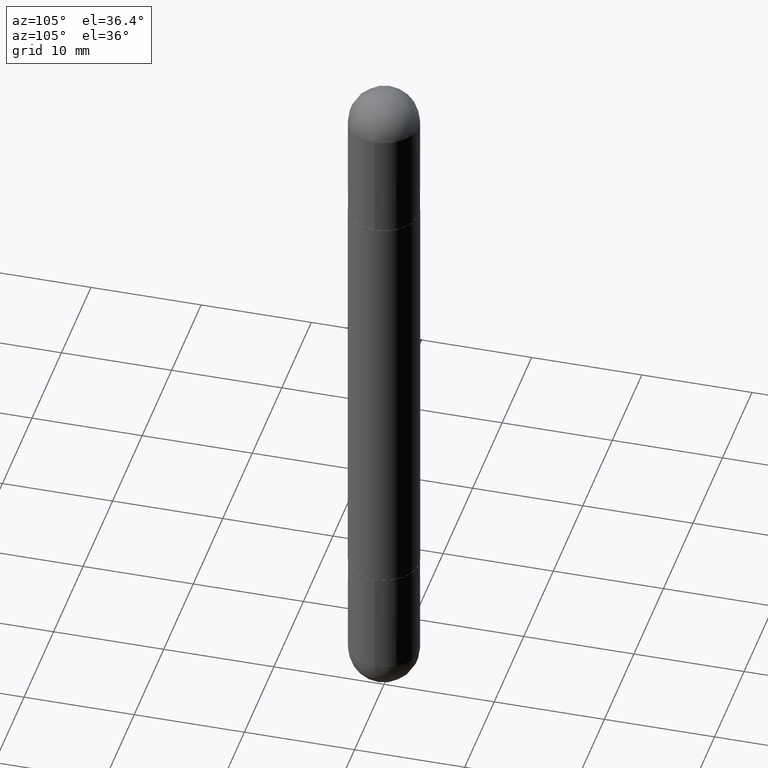
[diagram: clean part render]
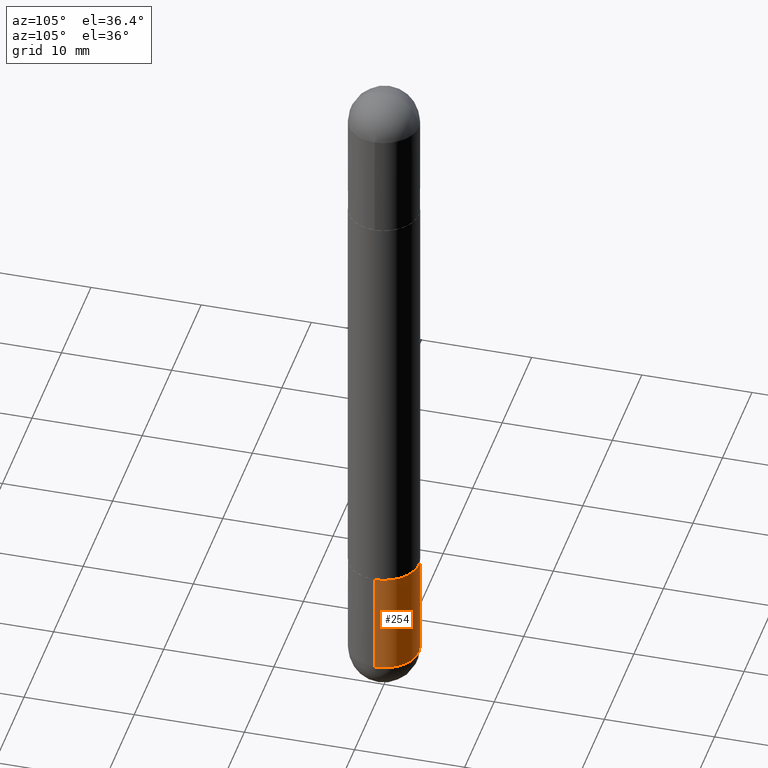
[diagram: same view with one face highlighted and labeled with its STEP entity id]
A machine part, auxiliary view. The second image highlights one B-rep face of the part: STEP entity #254.
In plain terms, the highlighted cylindrical surface (edge-blend (fillet) strip) has radius 3.175 mm, axis along (-0, 0, 1).
Its self-contained STEP definition (entity closure, byte-faithful):
#12 = VECTOR ( 'NONE', #752, 39.37007874015748143 ) ;
#16 = DIRECTION ( 'NONE',  ( 1.000000000000000000, -6.982962677686266711E-15, 4.876176775795935793E-29 ) ) ;
#40 = DIRECTION ( 'NONE',  ( -2.445468806185136877E-29, 3.491481338843145188E-15, 1.000000000000000000 ) ) ;
#93 = DIRECTION ( 'NONE',  ( -2.445468806185136597E-29, 3.491481338843145583E-15, 1.000000000000000000 ) ) ;
#109 = VECTOR ( 'NONE', #40, 39.37007874015748143 ) ;
#110 = CARTESIAN_POINT ( 'NONE',  ( 4.890937612370273194E-29, -6.982962677686291165E-15, -2.000000000000000000 ) ) ;
#113 = CIRCLE ( 'NONE', #540, 0.1250000000000000000 ) ;
#115 = LINE ( 'NONE', #159, #109 ) ;
#124 = LINE ( 'NONE', #493, #12 ) ;
#129 = DIRECTION ( 'NONE',  ( -2.445468806185136597E-29, 3.491481338843145583E-15, 1.000000000000000000 ) ) ;
#159 = CARTESIAN_POINT ( 'NONE',  ( 0.1250000000000000000, -8.728703347107833388E-16, 6.095220969744919741E-30 ) ) ;
#204 = CYLINDRICAL_SURFACE ( 'NONE', #776, 0.1250000000000000000 ) ;
#254 = ADVANCED_FACE ( 'NONE', ( #328 ), #204, .T. ) ;
#279 = CARTESIAN_POINT ( 'NONE',  ( -0.1250000000000000000, -6.749437009019255804E-15, -2.000000000000000000 ) ) ;
#282 = EDGE_CURVE ( 'NONE', #495, #341, #113, .T. ) ;
#313 = EDGE_CURVE ( 'NONE', #341, #454, #528, .T. ) ;
#317 = VERTEX_POINT ( 'NONE', #279 ) ;
#328 = FACE_OUTER_BOUND ( 'NONE', #373, .T. ) ;
#341 = VERTEX_POINT ( 'NONE', #584 ) ;
#359 = DIRECTION ( 'NONE',  ( 1.000000000000000000, -6.982962677686270655E-15, 0.000000000000000000 ) ) ;
#369 = CARTESIAN_POINT ( 'NONE',  ( 0.1250000000000000000, -8.510485763430165164E-15, -2.375000000000000000 ) ) ;
#373 = EDGE_LOOP ( 'NONE', ( #559, #688, #611, #574, #616 ) ) ;
#379 = DIRECTION ( 'NONE',  ( 1.000000000000000000, -6.982962677686270655E-15, 0.000000000000000000 ) ) ;
#406 = AXIS2_PLACEMENT_3D ( 'NONE', #110, #733, #359 ) ;
#435 = VERTEX_POINT ( 'NONE', #640 ) ;
#454 = VERTEX_POINT ( 'NONE', #609 ) ;
#459 = DIRECTION ( 'NONE',  ( 1.000000000000000000, -6.982962677686270655E-15, 0.000000000000000000 ) ) ;
#493 = CARTESIAN_POINT ( 'NONE',  ( -0.1250000000000000000, 8.881784197001252323E-16, -6.148668862818632227E-30 ) ) ;
#495 = VERTEX_POINT ( 'NONE', #369 ) ;
#528 = CIRCLE ( 'NONE', #716, 0.1250000000000000000 ) ;
#540 = AXIS2_PLACEMENT_3D ( 'NONE', #690, #129, #379 ) ;
#559 = ORIENTED_EDGE ( 'NONE', *, *, #313, .T. ) ;
#560 = EDGE_CURVE ( 'NONE', #435, #317, #762, .T. ) ;
#574 = ORIENTED_EDGE ( 'NONE', *, *, #706, .F. ) ;
#575 = CARTESIAN_POINT ( 'NONE',  ( 0.000000000000000000, 0.000000000000000000, 0.000000000000000000 ) ) ;
#584 = CARTESIAN_POINT ( 'NONE',  ( 8.728703347108403340E-16, 0.1249999999999915623, -2.375000000000000888 ) ) ;
#594 = EDGE_CURVE ( 'NONE', #454, #317, #124, .T. ) ;
#609 = CARTESIAN_POINT ( 'NONE',  ( -0.1250000000000000000, -6.749437009019256592E-15, -2.375000000000000000 ) ) ;
#611 = ORIENTED_EDGE ( 'NONE', *, *, #560, .F. ) ;
#616 = ORIENTED_EDGE ( 'NONE', *, *, #282, .T. ) ;
#640 = CARTESIAN_POINT ( 'NONE',  ( 0.1250000000000000000, -7.855833012397075293E-15, -2.000000000000000000 ) ) ;
#688 = ORIENTED_EDGE ( 'NONE', *, *, #594, .T. ) ;
#690 = CARTESIAN_POINT ( 'NONE',  ( 5.807988414689700538E-29, -8.292268179752471696E-15, -2.375000000000000000 ) ) ;
#697 = DIRECTION ( 'NONE',  ( -2.445468806185136597E-29, 3.491481338843145583E-15, 1.000000000000000000 ) ) ;
#706 = EDGE_CURVE ( 'NONE', #495, #435, #115, .T. ) ;
#709 = CARTESIAN_POINT ( 'NONE',  ( 5.807988414689700538E-29, -8.292268179752471696E-15, -2.375000000000000000 ) ) ;
#716 = AXIS2_PLACEMENT_3D ( 'NONE', #709, #93, #459 ) ;
#733 = DIRECTION ( 'NONE',  ( -2.445468806185136597E-29, 3.491481338843145583E-15, 1.000000000000000000 ) ) ;
#752 = DIRECTION ( 'NONE',  ( -2.445468806185136877E-29, 3.491481338843145188E-15, 1.000000000000000000 ) ) ;
#762 = CIRCLE ( 'NONE', #406, 0.1250000000000000000 ) ;
#776 = AXIS2_PLACEMENT_3D ( 'NONE', #575, #697, #16 ) ;